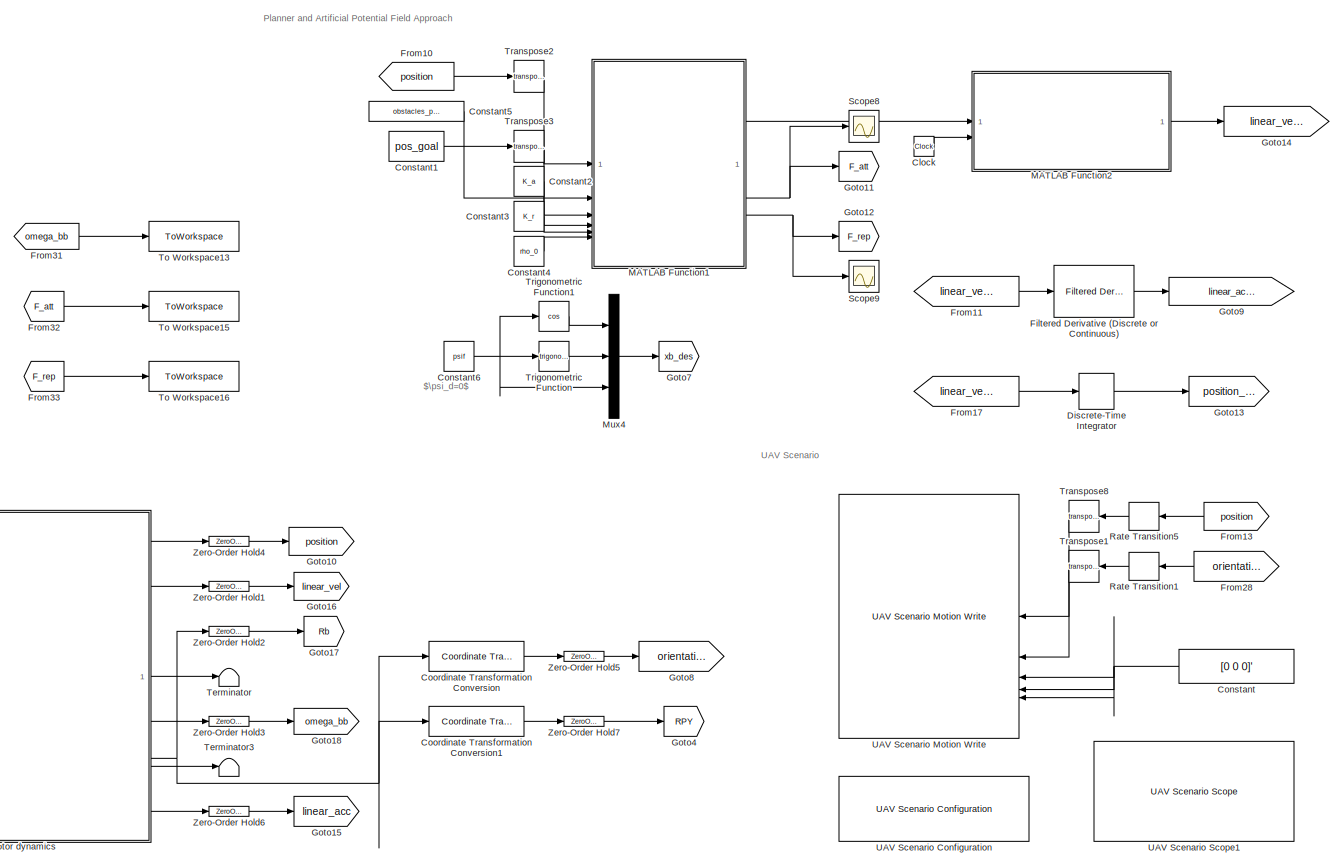
[diagram: root canvas - part 1/3, right side, full height]
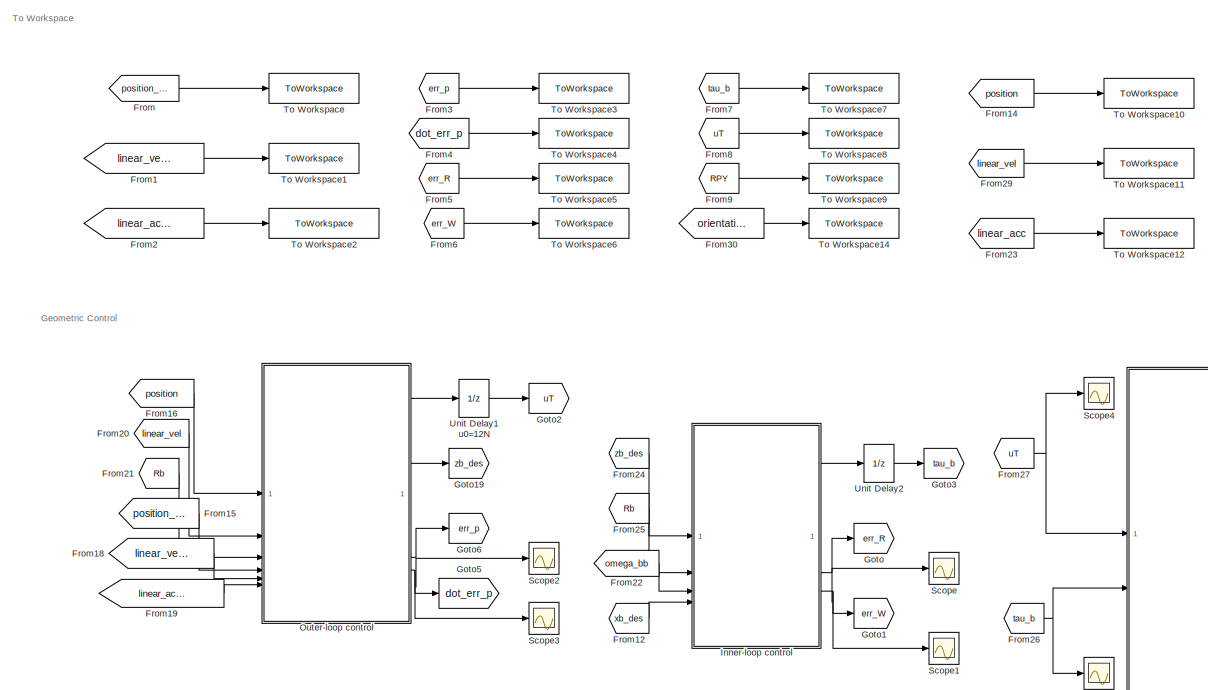
[diagram: root canvas - part 2/3, left side, full height]
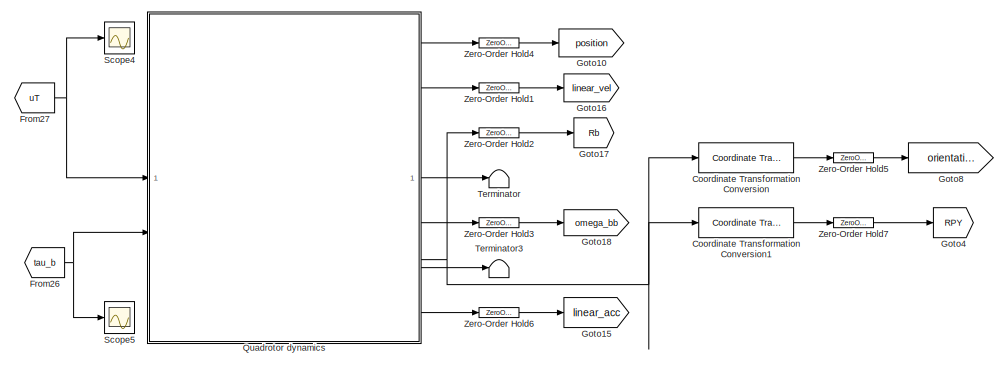
[diagram: root canvas - part 3/3, bottom center region]
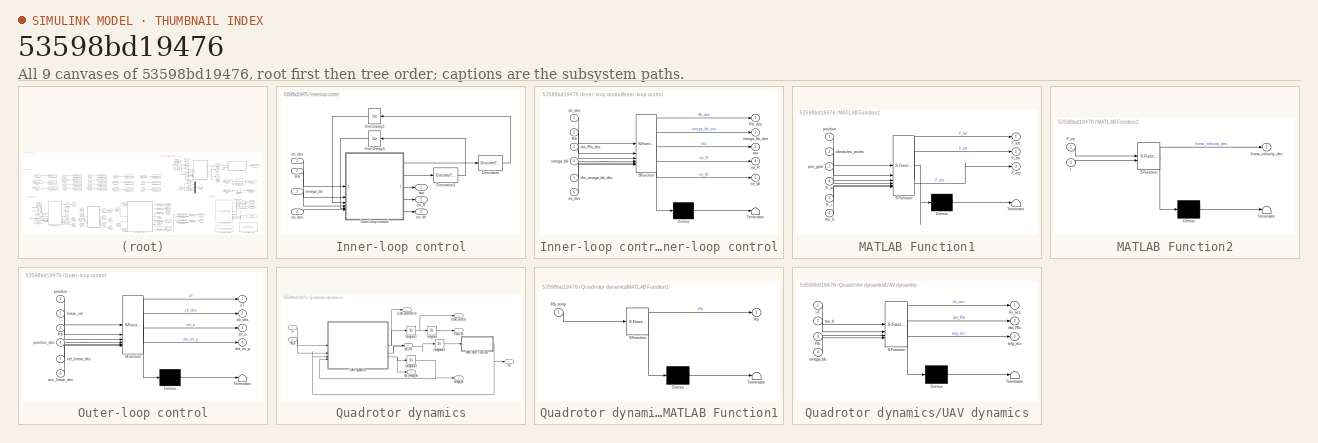
[diagram: thumbnail index - all 9 canvases of the model, root first then tree order]
MODEL slx_53598bd19476
KIND model
CONFIG AbsTol = auto
CONFIG EnableMultiTasking = off
CONFIG FixedStep = auto
CONFIG MaxStep = auto
CONFIG MinStep = auto
CONFIG RelTol = 1e-3
CONFIG SampleTimeConstraint = Unconstrained
CONFIG SolverName = VariableStepAuto
CONFIG StartTime = 0.0
CONFIG StopTime = 50
BLOCK [Clock] Clock
BLOCK [Constant] Constant
  NameLocation = top
  Value = [0 0 0]'
BLOCK [Constant] Constant1
  Value = pos_goal
BLOCK [Constant] Constant2
  Value = K_a
BLOCK [Constant] Constant3
  Value = K_r
BLOCK [Constant] Constant4
  Value = rho_0
BLOCK [Constant] Constant5
  Value = obstacles_points
BLOCK [Constant] Constant6
  Value = psif
BLOCK [Reference] Coordinate Transformation Conversion  REF=robotcorelib/Coordinate Transformation Conversion
  SourceBlock = robotcorelib/Coordinate Transformation Conversion
  SourceType = robotics.slcore.internal.block.CoordinateTransformationConversion
BLOCK [Reference] Coordinate Transformation Conversion1  REF=robotcorelib/Coordinate Transformation Conversion
  SourceBlock = robotcorelib/Coordinate Transformation Conversion
  SourceType = robotics.slcore.internal.block.CoordinateTransformationConversion
BLOCK [DiscreteIntegrator] Discrete-Time Integrator
  ICPrevOutput = DiscIntNeverNeededParam
  ICPrevScaledInput = DiscIntNeverNeededParam
  InitialCondition = pos_0
  InitialConditionSetting = Auto
  SampleTime = Ts
BLOCK [Reference] Filtered Derivative (Discrete or Continuous)  REF=eeGeneralControl/Filtered Derivative
(Discrete or Continuous)
  LibrarySourceBlock = ee_sl_lib/General Control/Filtered Derivative\n(Discrete or Continuous)
  SourceBlock = eeGeneralControl/Filtered Derivative\n(Discrete or Continuous)
  SourceType = Filtered Derivative (Discrete or Continuous)
BLOCK [From] From
  GotoTag = position_des
BLOCK [From] From1
  GotoTag = linear_velocity_des
BLOCK [From] From10
  GotoTag = position
BLOCK [From] From11
  GotoTag = linear_velocity_des
BLOCK [From] From12
  GotoTag = xb_des
BLOCK [From] From13
  GotoTag = position
  NameLocation = top
BLOCK [From] From14
  GotoTag = position
BLOCK [From] From15
  GotoTag = position_des
BLOCK [From] From16
  GotoTag = position
BLOCK [From] From17
  GotoTag = linear_velocity_des
BLOCK [From] From18
  GotoTag = linear_velocity_des
BLOCK [From] From19
  GotoTag = linear_acceleration_des
BLOCK [From] From2
  GotoTag = linear_acceleration_des
BLOCK [From] From20
  GotoTag = linear_vel
BLOCK [From] From21
  GotoTag = Rb
BLOCK [From] From22
  GotoTag = omega_bb
BLOCK [From] From23
  GotoTag = linear_acc
BLOCK [From] From24
  GotoTag = zb_des
BLOCK [From] From25
  GotoTag = Rb
BLOCK [From] From26
  GotoTag = tau_b
BLOCK [From] From27
  GotoTag = uT
BLOCK [From] From28
  GotoTag = orientation_quat
  NameLocation = top
BLOCK [From] From29
  GotoTag = linear_vel
BLOCK [From] From3
  GotoTag = err_p
BLOCK [From] From30
  GotoTag = orientation_quat
BLOCK [From] From31
  GotoTag = omega_bb
BLOCK [From] From32
  GotoTag = F_att
BLOCK [From] From33
  GotoTag = F_rep
BLOCK [From] From4
  GotoTag = dot_err_p
BLOCK [From] From5
  GotoTag = err_R
BLOCK [From] From6
  GotoTag = err_W
BLOCK [From] From7
  GotoTag = tau_b
BLOCK [From] From8
  GotoTag = uT
BLOCK [From] From9
  GotoTag = RPY
BLOCK [Goto] Goto
  GotoTag = err_R
BLOCK [Goto] Goto1
  GotoTag = err_W
BLOCK [Goto] Goto10
  GotoTag = position
BLOCK [Goto] Goto11
  GotoTag = F_att
BLOCK [Goto] Goto12
  GotoTag = F_rep
BLOCK [Goto] Goto13
  GotoTag = position_des
BLOCK [Goto] Goto14
  GotoTag = linear_velocity_des
BLOCK [Goto] Goto15
  GotoTag = linear_acc
BLOCK [Goto] Goto16
  GotoTag = linear_vel
BLOCK [Goto] Goto17
  GotoTag = Rb
BLOCK [Goto] Goto18
  GotoTag = omega_bb
BLOCK [Goto] Goto19
  GotoTag = zb_des
BLOCK [Goto] Goto2
  GotoTag = uT
BLOCK [Goto] Goto3
  GotoTag = tau_b
BLOCK [Goto] Goto4
  GotoTag = RPY
BLOCK [Goto] Goto5
  GotoTag = dot_err_p
BLOCK [Goto] Goto6
  GotoTag = err_p
BLOCK [Goto] Goto7
  GotoTag = xb_des
BLOCK [Goto] Goto8
  GotoTag = orientation_quat
BLOCK [Goto] Goto9
  GotoTag = linear_acceleration_des
BLOCK [SubSystem] Inner-loop control
BLOCK [DiscreteTransferFcn] Inner-loop control/Derivation
  Denominator = [Ts 0]
  InitialStates = [1 0 0;0 1 0;0 0 1]
  InputPortMap = u0
  Numerator = [1 -1]
  SampleTime = Ts
BLOCK [DiscreteTransferFcn] Inner-loop control/Derivation1
  Denominator = [Ts 0]
  InitialStates = [0 0 0]
  InputPortMap = u0
  Numerator = [1 -1]
  SampleTime = Ts
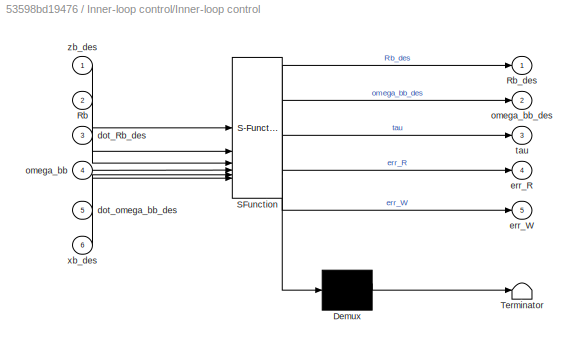
BLOCK [SubSystem] Inner-loop control/Inner-loop control
  ErrorFcn = Stateflow.Translate.translate
  PermitHierarchicalResolution = ExplicitOnly
  SFBlockType = MATLAB Function
  TreatAsAtomicUnit = on
BLOCK [Demux] Inner-loop control/Inner-loop control/ Demux 
  Outputs = 1
BLOCK [S-Function] Inner-loop control/Inner-loop control/ SFunction 
  EnableBusSupport = off
  FunctionName = sf_sfun
  Parameters = Ib
  PortCounts = [6 6]
  SFcnIsStateOwnerBlock = off
  SFunctionDeploymentMode = off
  Tag = Stateflow S-Function 4
BLOCK [Terminator] Inner-loop control/Inner-loop control/ Terminator 
BLOCK [Inport] Inner-loop control/Inner-loop control/Rb
  Port = 2
BLOCK [Outport] Inner-loop control/Inner-loop control/Rb_des
BLOCK [Inport] Inner-loop control/Inner-loop control/dot_Rb_des
  Port = 3
BLOCK [Inport] Inner-loop control/Inner-loop control/dot_omega_bb_des
  Port = 5
BLOCK [Outport] Inner-loop control/Inner-loop control/err_R
  Port = 4
BLOCK [Outport] Inner-loop control/Inner-loop control/err_W
  Port = 5
BLOCK [Inport] Inner-loop control/Inner-loop control/omega_bb
  Port = 4
BLOCK [Outport] Inner-loop control/Inner-loop control/omega_bb_des
  Port = 2
BLOCK [Outport] Inner-loop control/Inner-loop control/tau
  Port = 3
BLOCK [Inport] Inner-loop control/Inner-loop control/xb_des
  Port = 6
BLOCK [Inport] Inner-loop control/Inner-loop control/zb_des
BLOCK [Inport] Inner-loop control/Rb
  Port = 2
BLOCK [UnitDelay] Inner-loop control/Unit Delay1
  InitialCondition = eye(3)
  SampleTime = Ts
BLOCK [UnitDelay] Inner-loop control/Unit Delay3
  InitialCondition = [0 0 0]
  SampleTime = Ts
BLOCK [Outport] Inner-loop control/err_R
  Port = 2
BLOCK [Outport] Inner-loop control/err_W
  Port = 3
BLOCK [Inport] Inner-loop control/omega_bb
  Port = 3
BLOCK [Outport] Inner-loop control/tau
BLOCK [Inport] Inner-loop control/xb_des
  Port = 4
BLOCK [Inport] Inner-loop control/zb_des
BLOCK [SubSystem] MATLAB Function1
  ErrorFcn = Stateflow.Translate.translate
  PermitHierarchicalResolution = ExplicitOnly
  SFBlockType = MATLAB Function
  TreatAsAtomicUnit = on
BLOCK [Demux] MATLAB Function1/ Demux 
  Outputs = 1
BLOCK [S-Function] MATLAB Function1/ SFunction 
  EnableBusSupport = off
  FunctionName = sf_sfun
  PortCounts = [6 4]
  SFcnIsStateOwnerBlock = off
  SFunctionDeploymentMode = off
  Tag = Stateflow S-Function 6
BLOCK [Terminator] MATLAB Function1/ Terminator 
BLOCK [Outport] MATLAB Function1/F_att
  Port = 2
BLOCK [Outport] MATLAB Function1/F_rep
  Port = 3
BLOCK [Outport] MATLAB Function1/F_tot
BLOCK [Inport] MATLAB Function1/K_a
  Port = 4
BLOCK [Inport] MATLAB Function1/K_r
  Port = 5
BLOCK [Inport] MATLAB Function1/obstacles_points
  Port = 2
BLOCK [Inport] MATLAB Function1/pos_goal
  Port = 3
BLOCK [Inport] MATLAB Function1/position
BLOCK [Inport] MATLAB Function1/rho_0
  Port = 6
BLOCK [SubSystem] MATLAB Function2
  ErrorFcn = Stateflow.Translate.translate
  PermitHierarchicalResolution = ExplicitOnly
  SFBlockType = MATLAB Function
  TreatAsAtomicUnit = on
BLOCK [Demux] MATLAB Function2/ Demux 
  Outputs = 1
BLOCK [S-Function] MATLAB Function2/ SFunction 
  EnableBusSupport = off
  FunctionName = sf_sfun
  PortCounts = [2 2]
  SFcnIsStateOwnerBlock = off
  SFunctionDeploymentMode = off
  Tag = Stateflow S-Function 7
BLOCK [Terminator] MATLAB Function2/ Terminator 
BLOCK [Inport] MATLAB Function2/F_tot
BLOCK [Outport] MATLAB Function2/linear_velocity_des
BLOCK [Inport] MATLAB Function2/t
  Port = 2
BLOCK [Mux] Mux4
  DisplayOption = bar
  Inputs = 3
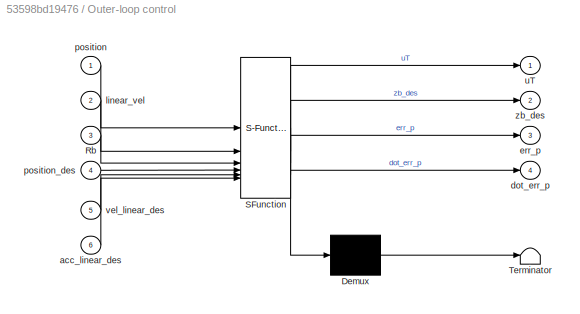
BLOCK [SubSystem] Outer-loop control
  ErrorFcn = Stateflow.Translate.translate
  PermitHierarchicalResolution = ExplicitOnly
  SFBlockType = MATLAB Function
  TreatAsAtomicUnit = on
BLOCK [Demux] Outer-loop control/ Demux 
  Outputs = 1
BLOCK [S-Function] Outer-loop control/ SFunction 
  EnableBusSupport = off
  FunctionName = sf_sfun
  Parameters = mass
  PortCounts = [6 5]
  SFcnIsStateOwnerBlock = off
  SFunctionDeploymentMode = off
  Tag = Stateflow S-Function 3
BLOCK [Terminator] Outer-loop control/ Terminator 
BLOCK [Inport] Outer-loop control/Rb
  Port = 3
BLOCK [Inport] Outer-loop control/acc_linear_des
  Port = 6
BLOCK [Outport] Outer-loop control/dot_err_p
  Port = 4
BLOCK [Outport] Outer-loop control/err_p
  Port = 3
BLOCK [Inport] Outer-loop control/linear_vel
  Port = 2
BLOCK [Inport] Outer-loop control/position
BLOCK [Inport] Outer-loop control/position_des
  Port = 4
BLOCK [Outport] Outer-loop control/uT
BLOCK [Inport] Outer-loop control/vel_linear_des
  Port = 5
BLOCK [Outport] Outer-loop control/zb_des
  Port = 2
BLOCK [SubSystem] Quadrotor dynamics
BLOCK [Integrator] Quadrotor dynamics/Integrator
  InitialCondition = pos_0
BLOCK [Integrator] Quadrotor dynamics/Integrator1
  InitialCondition = lin_vel_0
BLOCK [Integrator] Quadrotor dynamics/Integrator2
  InitialCondition = [1 0 0; 0 1 0;0 0 1]
BLOCK [Integrator] Quadrotor dynamics/Integrator3
  InitialCondition = w_bb_0
BLOCK [Outport] Quadrotor dynamics/Linear_acceleration
  Port = 7
BLOCK [Outport] Quadrotor dynamics/Linear_velocity
  Port = 2
BLOCK [SubSystem] Quadrotor dynamics/MATLAB Function1
  ErrorFcn = Stateflow.Translate.translate
  PermitHierarchicalResolution = ExplicitOnly
  SFBlockType = MATLAB Function
  TreatAsAtomicUnit = on
BLOCK [Demux] Quadrotor dynamics/MATLAB Function1/ Demux 
  Outputs = 1
BLOCK [S-Function] Quadrotor dynamics/MATLAB Function1/ SFunction 
  EnableBusSupport = off
  FunctionName = sf_sfun
  PortCounts = [1 2]
  SFcnIsStateOwnerBlock = off
  SFunctionDeploymentMode = off
  Tag = Stateflow S-Function 5
BLOCK [Terminator] Quadrotor dynamics/MATLAB Function1/ Terminator 
BLOCK [Outport] Quadrotor dynamics/MATLAB Function1/Rb
BLOCK [Inport] Quadrotor dynamics/MATLAB Function1/Rb_temp
BLOCK [Outport] Quadrotor dynamics/Position
BLOCK [Outport] Quadrotor dynamics/Rb
  Port = 3
BLOCK [SubSystem] Quadrotor dynamics/UAV dynamics
  ErrorFcn = Stateflow.Translate.translate
  PermitHierarchicalResolution = ExplicitOnly
  SFBlockType = MATLAB Function
  TreatAsAtomicUnit = on
BLOCK [Demux] Quadrotor dynamics/UAV dynamics/ Demux 
  Outputs = 1
BLOCK [S-Function] Quadrotor dynamics/UAV dynamics/ SFunction 
  EnableBusSupport = off
  FunctionName = sf_sfun
  Parameters = Ib,mass
  PortCounts = [4 4]
  SFcnIsStateOwnerBlock = off
  SFunctionDeploymentMode = off
  Tag = Stateflow S-Function 2
BLOCK [Terminator] Quadrotor dynamics/UAV dynamics/ Terminator 
BLOCK [Inport] Quadrotor dynamics/UAV dynamics/Rb
  Port = 3
BLOCK [Outport] Quadrotor dynamics/UAV dynamics/ang_acc
  Port = 3
BLOCK [Outport] Quadrotor dynamics/UAV dynamics/dot_Rb
  Port = 2
BLOCK [Outport] Quadrotor dynamics/UAV dynamics/lin_acc
BLOCK [Inport] Quadrotor dynamics/UAV dynamics/omega_bb
  Port = 4
BLOCK [Inport] Quadrotor dynamics/UAV dynamics/tau_b
  Port = 2
BLOCK [Inport] Quadrotor dynamics/UAV dynamics/uT
BLOCK [Outport] Quadrotor dynamics/dot_Rb
  Port = 4
BLOCK [Outport] Quadrotor dynamics/dot_omega_bb
  Port = 6
BLOCK [Outport] Quadrotor dynamics/omega_bb
  Port = 5
BLOCK [Inport] Quadrotor dynamics/tau_b
  Port = 2
BLOCK [Inport] Quadrotor dynamics/uT
BLOCK [RateTransition] Rate Transition1
  OutPortSampleTime = Ts
BLOCK [RateTransition] Rate Transition5
  OutPortSampleTime = Ts
BLOCK [Scope] Scope
  ActiveDisplayYMaximum = 3.1E-6
  ActiveDisplayYMinimum = -3.1E-6
  Floating = off
  GraphicalSettings = {"GraphicalSettings":{"LegacySettings":true,"Style":{"Style":{"AxesColor":"[0 0 0]","ChannelNames":[""],"ColorOrder":"[1 1 0.0666666666666667;0.0745098039215686 0.623529411764706 1;1 0.411764705882353 0.16078431372549;0.392156862745098 0.831372549019608 0.0745098039215686;0.717647058823529 0.274509803921569 1;0.0588235294117647 1 1;1 0.0745098039215686 0.650980392156863]","CurrentConfiguration":"e...<+407ch>
  MultipleDisplayCache = [{"MaxYLimMag":3.1E-6,"MaxYLimReal":3.1E-6,"MinYLimMag":0,"MinYLimReal":-3.1E-6,"PlotAsMagnitudePhase":false,"ShowGrid":true,"ShowLegend":false,"Title":"%<SignalLabel>","YLabel":""}]
  NumInputPorts = 1
  WasSavedAsWebScope = on
BLOCK [Scope] Scope1
  ActiveDisplayYMaximum = 1.2E-5
  ActiveDisplayYMinimum = -1.2E-5
  DataLoggingVariableName = ScopeData1
  Floating = off
  GraphicalSettings = {"GraphicalSettings":{"LegacySettings":true,"Style":{"Style":{"AxesColor":"[0 0 0]","ChannelNames":[""],"ColorOrder":"[1 1 0.0666666666666667;0.0745098039215686 0.623529411764706 1;1 0.411764705882353 0.16078431372549;0.392156862745098 0.831372549019608 0.0745098039215686;0.717647058823529 0.274509803921569 1;0.0588235294117647 1 1;1 0.0745098039215686 0.650980392156863]","CurrentConfiguration":"e...<+408ch>
  MultipleDisplayCache = [{"MaxYLimMag":1.2E-5,"MaxYLimReal":1.2E-5,"MinYLimMag":0,"MinYLimReal":-1.2E-5,"PlotAsMagnitudePhase":false,"ShowGrid":true,"ShowLegend":false,"Title":"%<SignalLabel>","YLabel":""}]
  NumInputPorts = 1
  WasSavedAsWebScope = on
BLOCK [Scope] Scope2
  ActiveDisplayYMaximum = 2E-6
  ActiveDisplayYMinimum = -1E-5
  DataLoggingVariableName = ScopeData6
  Floating = off
  GraphicalSettings = {"GraphicalSettings":{"LegacySettings":true,"Style":{"AxesScalingProperties":{"ScaleAxesLimitsAtStop":false},"Style":{"AxesColor":"[0 0 0]","ChannelNames":[""],"ColorOrder":"[1 1 0.0666666666666667;0.0745098039215686 0.623529411764706 1;1 0.411764705882353 0.16078431372549;0.392156862745098 0.831372549019608 0.0745098039215686;0.717647058823529 0.274509803921569 1;0.0588235294117647 1 1;1 0.074509...<+461ch>
  MultipleDisplayCache = [{"MaxYLimMag":1E-5,"MaxYLimReal":2E-6,"MinYLimMag":0,"MinYLimReal":-1E-5,"PlotAsMagnitudePhase":false,"ShowGrid":true,"ShowLegend":false,"Title":"%<SignalLabel>","YLabel":""}]
  NumInputPorts = 1
  WasSavedAsWebScope = on
BLOCK [Scope] Scope3
  ActiveDisplayYMaximum = 5E-5
  ActiveDisplayYMinimum = -0.00022
  DataLoggingVariableName = ScopeData3
  Floating = off
  GraphicalSettings = {"GraphicalSettings":{"LegacySettings":true,"Style":{"AxesScalingProperties":{"ScaleAxesLimitsAtStop":false},"Style":{"AxesColor":"[0 0 0]","ChannelNames":[""],"ColorOrder":"[1 1 0.0666666666666667;0.0745098039215686 0.623529411764706 1;1 0.411764705882353 0.16078431372549;0.392156862745098 0.831372549019608 0.0745098039215686;0.717647058823529 0.274509803921569 1;0.0588235294117647 1 1;1 0.074509...<+463ch>
  MultipleDisplayCache = [{"MaxYLimMag":0.00022,"MaxYLimReal":5E-5,"MinYLimMag":0,"MinYLimReal":-0.00022,"PlotAsMagnitudePhase":false,"ShowGrid":true,"ShowLegend":false,"Title":"%<SignalLabel>","YLabel":""}]
  NumInputPorts = 1
  WasSavedAsWebScope = on
BLOCK [Scope] Scope4
  ActiveDisplayYMaximum = 12.03695
  ActiveDisplayYMinimum = 11.66748
  DataLoggingVariableName = ScopeData4
  Floating = off
  GraphicalSettings = {"GraphicalSettings":{"LegacySettings":true,"Style":{"Style":{"AxesColor":"[0 0 0]","ChannelNames":[""],"ColorOrder":"[1 1 0.0666666666666667;0.0745098039215686 0.623529411764706 1;1 0.411764705882353 0.16078431372549;0.392156862745098 0.831372549019608 0.0745098039215686;0.717647058823529 0.274509803921569 1;0.0588235294117647 1 1;1 0.0745098039215686 0.650980392156863]","CurrentConfiguration":"e...<+375ch>
  MultipleDisplayCache = [{"MaxYLimMag":12.03695,"MaxYLimReal":12.03695,"MinYLimMag":11.66748,"MinYLimReal":11.66748,"PlotAsMagnitudePhase":false,"ShowGrid":true,"ShowLegend":false,"Title":"%<SignalLabel>","YLabel":""}]
  NumInputPorts = 1
  WasSavedAsWebScope = on
BLOCK [Scope] Scope5
  ActiveDisplayYMaximum = 0.02035
  ActiveDisplayYMinimum = -0.02035
  DataLoggingVariableName = ScopeData5
  Floating = off
  GraphicalSettings = {"GraphicalSettings":{"LegacySettings":true,"Style":{"AxesScalingProperties":{"ScaleAxesLimitsAtStop":false},"Style":{"AxesColor":"[0 0 0]","ChannelNames":[""],"ColorOrder":"[1 1 0.0666666666666667;0.0745098039215686 0.623529411764706 1;1 0.411764705882353 0.16078431372549;0.392156862745098 0.831372549019608 0.0745098039215686;0.717647058823529 0.274509803921569 1;0.0588235294117647 1 1;1 0.074509...<+463ch>
  MultipleDisplayCache = [{"MaxYLimMag":0.02035,"MaxYLimReal":0.02035,"MinYLimMag":0,"MinYLimReal":-0.02035,"PlotAsMagnitudePhase":false,"ShowGrid":true,"ShowLegend":false,"Title":"%<SignalLabel>","YLabel":""}]
  NumInputPorts = 1
  WasSavedAsWebScope = on
BLOCK [Scope] Scope8
  ActiveDisplayYMaximum = 10.433654100091561
  ActiveDisplayYMinimum = -10.489441161556352
  DataLoggingVariableName = ScopeData8
  Floating = off
  GraphicalSettings = {"Style":{"BackgroundColor":[0.12941176470588237,0.12941176470588237,0.12941176470588237],"AxesColor":[0.07058823529411765,0.07058823529411765,0.07058823529411765],"LabelsColor":[0.8509803921568627,0.8509803921568627,0.8509803921568627],"PreserveColors":false,"Visible":[true,true,true],"LineStyle":["-","-","-"],"LineWidth":[1.5,1.5,1.5],"BarWidth":[0.9,0.9,0.9],"LineColor":["auto","auto","auto"],"...<+2224ch>
  MultipleDisplayCache = [{"MaxYLimMag":10,"MaxYLimReal":10.433654100091561,"MinYLimMag":0,"MinYLimReal":-10.489441161556352,"PlotAsMagnitudePhase":false,"ShowGrid":true,"ShowLegend":false,"Title":"%<SignalLabel>","YLabel":""}]
  NumInputPorts = 1
  ScopeFrameLocation = window
  WasSavedAsWebScope = on
  WindowPosition = [2185.000000,199.000000,558.000000,419.000000,]
BLOCK [Scope] Scope9
  ActiveDisplayYMaximum = 1
  ActiveDisplayYMinimum = -1
  DataLoggingVariableName = ScopeData9
  Floating = off
  GraphicalSettings = {"Style":{"BackgroundColor":[0.12941176470588237,0.12941176470588237,0.12941176470588237],"AxesColor":[0.07058823529411765,0.07058823529411765,0.07058823529411765],"LabelsColor":[0.8509803921568627,0.8509803921568627,0.8509803921568627],"PreserveColors":false,"Visible":[true,true,true],"LineStyle":["-","-","-"],"LineWidth":[1.5,1.5,1.5],"BarWidth":[0.9,0.9,0.9],"LineColor":["auto","auto","auto"],"...<+2260ch>
  MultipleDisplayCache = [{"MaxYLimMag":1,"MaxYLimReal":1,"MinYLimMag":0,"MinYLimReal":-1,"PlotAsMagnitudePhase":false,"ShowGrid":true,"ShowLegend":false,"Title":"%<SignalLabel>","YLabel":""}]
  NumInputPorts = 1
  ScopeFrameLocation = window
  WasSavedAsWebScope = on
  WindowPosition = [1921.000000,49.000000,1920.000000,1009.000000,]
BLOCK [Terminator] Terminator
BLOCK [Terminator] Terminator3
BLOCK [ToWorkspace] To Workspace
  FixptAsFi = on
  MaxDataPoints = inf
  SampleTime = -1
  SaveFormat = Timeseries
  VariableName = position_des
BLOCK [ToWorkspace] To Workspace1
  FixptAsFi = on
  MaxDataPoints = inf
  SampleTime = -1
  SaveFormat = Timeseries
  VariableName = linear_velocity_des
BLOCK [ToWorkspace] To Workspace10
  FixptAsFi = on
  MaxDataPoints = inf
  SampleTime = -1
  SaveFormat = Timeseries
  VariableName = position
BLOCK [ToWorkspace] To Workspace11
  FixptAsFi = on
  MaxDataPoints = inf
  SampleTime = -1
  SaveFormat = Timeseries
  VariableName = linear_vel
BLOCK [ToWorkspace] To Workspace12
  FixptAsFi = on
  MaxDataPoints = inf
  SampleTime = -1
  SaveFormat = Timeseries
  VariableName = linear_acc
BLOCK [ToWorkspace] To Workspace13
  FixptAsFi = on
  MaxDataPoints = inf
  SampleTime = -1
  SaveFormat = Timeseries
  VariableName = omega_bb
BLOCK [ToWorkspace] To Workspace14
  FixptAsFi = on
  MaxDataPoints = inf
  SampleTime = -1
  SaveFormat = Timeseries
  VariableName = orientation_quat
BLOCK [ToWorkspace] To Workspace15
  FixptAsFi = on
  MaxDataPoints = inf
  SampleTime = -1
  SaveFormat = Timeseries
  VariableName = F_att
BLOCK [ToWorkspace] To Workspace16
  FixptAsFi = on
  MaxDataPoints = inf
  SampleTime = -1
  SaveFormat = Timeseries
  VariableName = F_rep
BLOCK [ToWorkspace] To Workspace2
  FixptAsFi = on
  MaxDataPoints = inf
  SampleTime = -1
  SaveFormat = Timeseries
  VariableName = linear_acceleration_des
BLOCK [ToWorkspace] To Workspace3
  FixptAsFi = on
  MaxDataPoints = inf
  SampleTime = -1
  SaveFormat = Timeseries
  VariableName = err_p
BLOCK [ToWorkspace] To Workspace4
  FixptAsFi = on
  MaxDataPoints = inf
  SampleTime = -1
  SaveFormat = Timeseries
  VariableName = dot_err_p
BLOCK [ToWorkspace] To Workspace5
  FixptAsFi = on
  MaxDataPoints = inf
  SampleTime = -1
  SaveFormat = Timeseries
  VariableName = err_R
BLOCK [ToWorkspace] To Workspace6
  FixptAsFi = on
  MaxDataPoints = inf
  SampleTime = -1
  SaveFormat = Timeseries
  VariableName = err_W
BLOCK [ToWorkspace] To Workspace7
  FixptAsFi = on
  MaxDataPoints = inf
  SampleTime = -1
  SaveFormat = Timeseries
  VariableName = tau_b
BLOCK [ToWorkspace] To Workspace8
  FixptAsFi = on
  MaxDataPoints = inf
  SampleTime = -1
  SaveFormat = Timeseries
  VariableName = uT
BLOCK [ToWorkspace] To Workspace9
  FixptAsFi = on
  MaxDataPoints = inf
  SampleTime = -1
  SaveFormat = Timeseries
  VariableName = RPY
BLOCK [Math] Transpose1
  NameLocation = top
  Operator = transpose
BLOCK [Math] Transpose2
  Operator = transpose
BLOCK [Math] Transpose3
  Operator = transpose
BLOCK [Math] Transpose8
  NameLocation = top
  Operator = transpose
BLOCK [Trigonometry] Trigonometric Function
BLOCK [Trigonometry] Trigonometric Function1
  Operator = cos
BLOCK [Reference] UAV Scenario Configuration  REF=uavsimlib/UAV Scenario Configuration
  Priority = -1
  SourceBlock = uavsimlib/UAV Scenario Configuration
  SourceType = UAV Scenario Configuration
BLOCK [Reference] UAV Scenario Motion Write  REF=uavsimlib/UAV Scenario Motion Write
  Priority = 0
  SourceBlock = uavsimlib/UAV Scenario Motion Write
  SourceType = UAV Scenario Motion Write
BLOCK [Reference] UAV Scenario Scope1  REF=uavsimlib/UAV Scenario Scope
  Priority = 1
  SourceBlock = uavsimlib/UAV Scenario Scope
  SourceType = UAV Scenario Scope
BLOCK [UnitDelay] Unit Delay1 u0=12N
  InitialCondition = 12
  SampleTime = Ts
BLOCK [UnitDelay] Unit Delay2
  InitialCondition = [0 0 0]
  SampleTime = Ts
BLOCK [ZeroOrderHold] Zero-Order Hold1
  SampleTime = Ts
BLOCK [ZeroOrderHold] Zero-Order Hold2
  SampleTime = Ts
BLOCK [ZeroOrderHold] Zero-Order Hold3
  SampleTime = Ts
BLOCK [ZeroOrderHold] Zero-Order Hold4
  SampleTime = Ts
BLOCK [ZeroOrderHold] Zero-Order Hold5
  SampleTime = Ts
BLOCK [ZeroOrderHold] Zero-Order Hold6
  SampleTime = Ts
BLOCK [ZeroOrderHold] Zero-Order Hold7
  SampleTime = Ts
ANNOTATION (root): Geometric Control
ANNOTATION (root): Planner and Artificial Potential Field Approach
ANNOTATION (root): To Workspace
ANNOTATION (root): UAV Scenario
ANNOTATION (root): $\psi_d=0$
LINE Clock:1 -> MATLAB Function2:2
LINE Constant1:1 -> Transpose3:1
LINE Constant2:1 -> MATLAB Function1:4
LINE Constant3:1 -> MATLAB Function1:5
LINE Constant4:1 -> MATLAB Function1:6
LINE Constant5:1 -> MATLAB Function1:2
NET Constant6:1 -> Mux4:3, Trigonometric Function1:1, Trigonometric Function:1
NET Constant:1 -> UAV Scenario Motion Write:3, UAV Scenario Motion Write:4, UAV Scenario Motion Write:5
LINE Coordinate Transformation Conversion1:1 -> Zero-Order Hold7:1
LINE Coordinate Transformation Conversion:1 -> Zero-Order Hold5:1
LINE Discrete-Time Integrator:1 -> Goto13:1
LINE Filtered Derivative (Discrete or Continuous):1 -> Goto9:1
LINE From10:1 -> Transpose2:1
LINE From11:1 -> Filtered Derivative (Discrete or Continuous):1
LINE From12:1 -> Inner-loop control:4
LINE From13:1 -> Rate Transition5:1
LINE From14:1 -> To Workspace10:1
LINE From15:1 -> Outer-loop control:4
LINE From16:1 -> Outer-loop control:1
LINE From17:1 -> Discrete-Time Integrator:1
LINE From18:1 -> Outer-loop control:5
LINE From19:1 -> Outer-loop control:6
LINE From1:1 -> To Workspace1:1
LINE From20:1 -> Outer-loop control:2
LINE From21:1 -> Outer-loop control:3
LINE From22:1 -> Inner-loop control:3
LINE From23:1 -> To Workspace12:1
LINE From24:1 -> Inner-loop control:1
LINE From25:1 -> Inner-loop control:2
NET From26:1 -> Quadrotor dynamics:2, Scope5:1
NET From27:1 -> Quadrotor dynamics:1, Scope4:1
LINE From28:1 -> Rate Transition1:1
LINE From29:1 -> To Workspace11:1
LINE From2:1 -> To Workspace2:1
LINE From30:1 -> To Workspace14:1
LINE From31:1 -> To Workspace13:1
LINE From32:1 -> To Workspace15:1
LINE From33:1 -> To Workspace16:1
LINE From3:1 -> To Workspace3:1
LINE From4:1 -> To Workspace4:1
LINE From5:1 -> To Workspace5:1
LINE From6:1 -> To Workspace6:1
LINE From7:1 -> To Workspace7:1
LINE From8:1 -> To Workspace8:1
LINE From9:1 -> To Workspace9:1
LINE From:1 -> To Workspace:1
LINE Inner-loop control/Derivation1:1 -> Inner-loop control/Unit Delay3:1
LINE Inner-loop control/Derivation:1 -> Inner-loop control/Unit Delay1:1
LINE Inner-loop control/Inner-loop control:1 -> Inner-loop control/Derivation:1
LINE Inner-loop control/Inner-loop control:2 -> Inner-loop control/Derivation1:1
LINE Inner-loop control/Inner-loop control:3 -> Inner-loop control/tau:1
LINE Inner-loop control/Inner-loop control:4 -> Inner-loop control/err_R:1
LINE Inner-loop control/Inner-loop control:5 -> Inner-loop control/err_W:1
LINE Inner-loop control/Rb:1 -> Inner-loop control/Inner-loop control:2
LINE Inner-loop control/Unit Delay1:1 -> Inner-loop control/Inner-loop control:3
LINE Inner-loop control/Unit Delay3:1 -> Inner-loop control/Inner-loop control:5
LINE Inner-loop control/omega_bb:1 -> Inner-loop control/Inner-loop control:4
LINE Inner-loop control/xb_des:1 -> Inner-loop control/Inner-loop control:6
LINE Inner-loop control/zb_des:1 -> Inner-loop control/Inner-loop control:1
LINE Inner-loop control:1 -> Unit Delay2:1
NET Inner-loop control:2 -> Goto:1, Scope:1
NET Inner-loop control:3 -> Goto1:1, Scope1:1
LINE MATLAB Function1:1 -> MATLAB Function2:1
NET MATLAB Function1:2 -> Goto11:1, Scope8:1
NET MATLAB Function1:3 -> Goto12:1, Scope9:1
LINE MATLAB Function2:1 -> Goto14:1
LINE Mux4:1 -> Goto7:1
LINE Outer-loop control:1 -> Unit Delay1 u0=12N:1
LINE Outer-loop control:2 -> Goto19:1
NET Outer-loop control:3 -> Goto6:1, Scope2:1
NET Outer-loop control:4 -> Goto5:1, Scope3:1
NET Quadrotor dynamics/Integrator1:1 -> Quadrotor dynamics/Integrator:1, Quadrotor dynamics/Linear_velocity:1
LINE Quadrotor dynamics/Integrator2:1 -> Quadrotor dynamics/MATLAB Function1:1
NET Quadrotor dynamics/Integrator3:1 -> Quadrotor dynamics/UAV dynamics:4, Quadrotor dynamics/omega_bb:1
LINE Quadrotor dynamics/Integrator:1 -> Quadrotor dynamics/Position:1
NET Quadrotor dynamics/MATLAB Function1:1 -> Quadrotor dynamics/Rb:1, Quadrotor dynamics/UAV dynamics:3
NET Quadrotor dynamics/UAV dynamics:1 -> Quadrotor dynamics/Integrator1:1, Quadrotor dynamics/Linear_acceleration:1
NET Quadrotor dynamics/UAV dynamics:2 -> Quadrotor dynamics/Integrator2:1, Quadrotor dynamics/dot_Rb:1
NET Quadrotor dynamics/UAV dynamics:3 -> Quadrotor dynamics/Integrator3:1, Quadrotor dynamics/dot_omega_bb:1
LINE Quadrotor dynamics/tau_b:1 -> Quadrotor dynamics/UAV dynamics:2
LINE Quadrotor dynamics/uT:1 -> Quadrotor dynamics/UAV dynamics:1
LINE Quadrotor dynamics:1 -> Zero-Order Hold4:1
LINE Quadrotor dynamics:2 -> Zero-Order Hold1:1
NET Quadrotor dynamics:3 -> Coordinate Transformation Conversion1:1, Coordinate Transformation Conversion:1, Zero-Order Hold2:1
LINE Quadrotor dynamics:4 -> Terminator:1
LINE Quadrotor dynamics:5 -> Zero-Order Hold3:1
LINE Quadrotor dynamics:6 -> Terminator3:1
LINE Quadrotor dynamics:7 -> Zero-Order Hold6:1
LINE Rate Transition1:1 -> Transpose1:1
LINE Rate Transition5:1 -> Transpose8:1
LINE Transpose1:1 -> UAV Scenario Motion Write:2
LINE Transpose2:1 -> MATLAB Function1:1
LINE Transpose3:1 -> MATLAB Function1:3
LINE Transpose8:1 -> UAV Scenario Motion Write:1
LINE Trigonometric Function1:1 -> Mux4:1
LINE Trigonometric Function:1 -> Mux4:2
LINE Unit Delay1 u0=12N:1 -> Goto2:1
LINE Unit Delay2:1 -> Goto3:1
LINE Zero-Order Hold1:1 -> Goto16:1
LINE Zero-Order Hold2:1 -> Goto17:1
LINE Zero-Order Hold3:1 -> Goto18:1
LINE Zero-Order Hold4:1 -> Goto10:1
LINE Zero-Order Hold5:1 -> Goto8:1
LINE Zero-Order Hold6:1 -> Goto15:1
LINE Zero-Order Hold7:1 -> Goto4:1
note: NET lines group one-source signal fan-out (src -> all destinations, sorted); 1:1 wires keep LINE
CHART Quadrotor dynamics/UAV dynamics states=1 transitions=1
  STATE_LABEL 'eML_blk_kernel()'
  STATE_LABEL "SCRIPT:\nfunction [lin_acc, dot_Rb, ang_acc] = fcn(uT,tau_b,Rb,omega_bb,mass, Ib)\n\nlin_acc = 9.81*[0 0 1]'-(uT/mass)*Rb*[0 0 1]';\ndot_Rb = Rb*skew(omega_bb);\nang_acc = inv(Ib)*(-skew(omega_bb)*Ib*omega_bb + tau_b);\n\nend\n\nfunction S = skew(v)\nif(numel(v)~= 1)\nS= [0 -v(3) v(2); \n    v(3) 0 -v(1);\n    -v(2) v(1) 0];\nelse\nS= zeros(3);\nend\nend"
CHART Outer-loop control states=1 transitions=1
  STATE_LABEL 'eML_blk_kernel()'
  STATE_LABEL 'SCRIPT:\nfunction [uT, zb_des, err_p, dot_err_p] = fcn(position, linear_vel, Rb, mass, ...\n    position_des, vel_linear_des, acc_linear_des)\n\n%% WRITE HERE THE OUTER-LOOP CONTROL\n% position: linear position measure\n% linear_vel: linear velocity measure\n% Rb: current rotation matrix\n% mass: mass of the UAV\n% positon_des: desired linear position from the planner\n% vel_linear_des: desired linear veloc...<+782ch>'
CHART Inner-loop control/Inner-loop control states=1 transitions=1
  STATE_LABEL 'eML_blk_kernel()'
  STATE_LABEL 'SCRIPT:\nfunction [Rb_des,omega_bb_des,tau,err_R,err_W] = fcn(zb_des,Rb,dot_Rb_des,omega_bb,dot_omega_bb_des,xb_des,Ib)\n\n%% WRITE HERE THE INNER-LOOP CONTROL\n% zb_des: desired z-axis of the body frame\n% Rb: current rotation matrix\n% dot_Rb_des: time-derivative of the desired rotation matrix\n% omega_bb: current angular velocity expressed in the body frame\n% dot_omega_bb_des: desired angular accelera...<+1237ch>'
CHART Quadrotor dynamics/MATLAB Function1 states=1 transitions=1
  STATE_LABEL 'eML_blk_kernel()'
  STATE_LABEL "SCRIPT:\nfunction Rb = fcn(Rb_temp)\n    [U,S,V] = svd(Rb_temp);\n    sigma = det(U*V');\n    S_ = diag([1 1 sigma]);\n\n    Rb = U*S_*V';\nend\n"
CHART MATLAB Function1 states=1 transitions=1
  STATE_LABEL 'eML_blk_kernel()'
  STATE_LABEL 'SCRIPT:\nfunction [F_tot, F_att, F_rep] = ForceComputation(position, obstacles_points, pos_goal, K_a, K_r, rho_0)\n% Computes the Total Force (Attractive + Repulsive) for APF (Artificial Potential Field Algorithm)\n%\n% Inputs:\n%   position         - 1x3 UAV Current Position [x, y, z]\n%   obstacles_points - 3xN Matrix: each Column is an Obstacle Point [x; y; z] (Different Frame)\n%   pos_goal         -...<+1429ch>'
CHART MATLAB Function2 states=1 transitions=1
  STATE_LABEL 'eML_blk_kernel()'
  STATE_LABEL 'SCRIPT:\nfunction linear_velocity_des = FilteredVelocity(F_tot, t)\n%   This Function apply an Exponential Moving Average Filter to input Total Force Vector\n%   It returns the filtered Velocity Vector based on the Input Force Vector F_tot\n%   and the Current Time t (for alpha).\n%\n%   Inputs:\n%       F_tot - 1x3 Vector, Total Force Input (from APF Algorithm)\n%       t     - Scalar, Current Time (seco...<+1634ch>'
CHART  states=0 transitions=0
CHART  states=0 transitions=0
CHART  states=0 transitions=0
CHART  states=0 transitions=0
CHART  states=0 transitions=0
CHART  states=0 transitions=0
